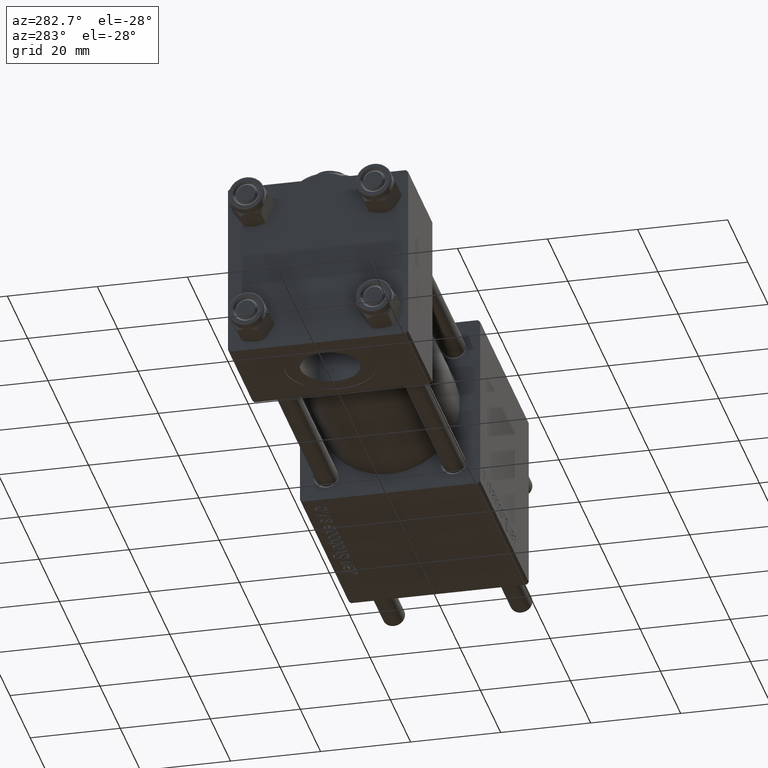
[diagram: clean part render]
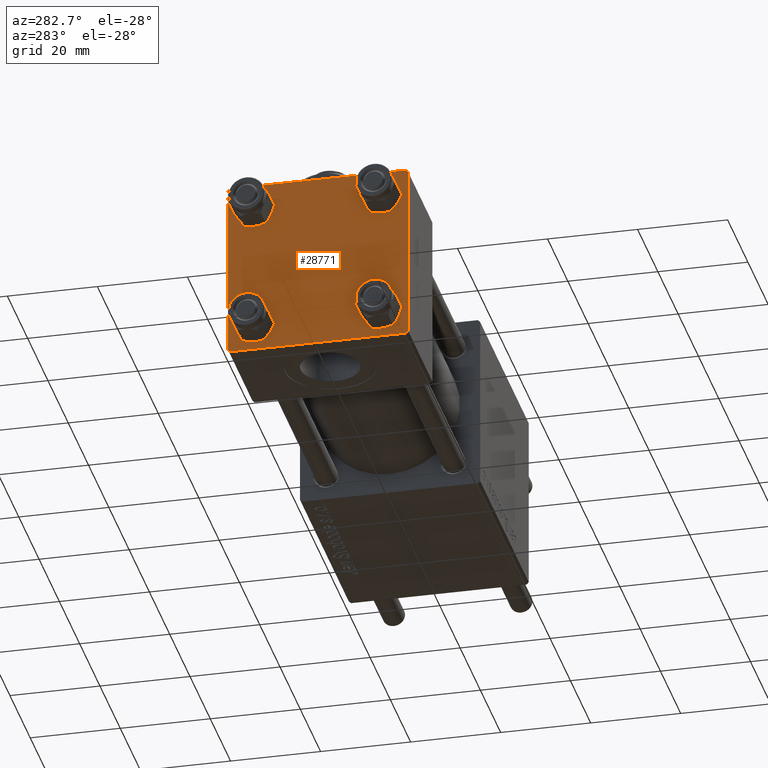
[diagram: same view with one face highlighted and labeled with its STEP entity id]
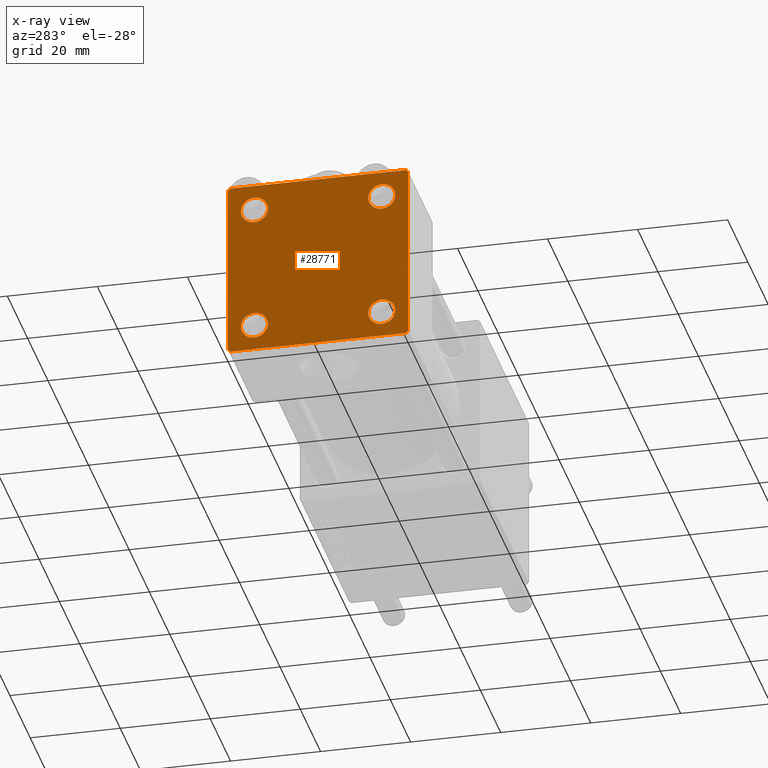
[diagram: x-ray of the same camera — body ghosted, the highlighted face saturated]
A machine part, auxiliary view. The second image highlights one B-rep face of the part: STEP entity #28771.
The next image is the same camera in x-ray: the body ghosted, the highlighted face saturated — about 0% of this face is hidden behind the body in this view.
In plain terms, the highlighted planar face has unit normal (-1, 0, 0).
Its self-contained STEP definition (entity closure, byte-faithful):
#1405 = EDGE_CURVE ( 'NONE', #23256, #45078, #50200, .T. ) ;
#2167 = DIRECTION ( 'NONE',  ( 1.000000000000000000, 0.000000000000000000, 0.000000000000000000 ) ) ;
#2416 = DIRECTION ( 'NONE',  ( 0.000000000000000000, 0.000000000000000000, 1.000000000000000000 ) ) ;
#2575 = CARTESIAN_POINT ( 'NONE',  ( 0.000000000000000000, -14.14999999999999503, 11.15000000000002345 ) ) ;
#2623 = CARTESIAN_POINT ( 'NONE',  ( 0.000000000000000000, -19.50000000000000711, -20.00000000000000000 ) ) ;
#3075 = VERTEX_POINT ( 'NONE', #20950 ) ;
#4042 = DIRECTION ( 'NONE',  ( -1.000000000000000000, 0.000000000000000000, -0.000000000000000000 ) ) ;
#4262 = VECTOR ( 'NONE', #39077, 1000.000000000000000 ) ;
#4516 = VERTEX_POINT ( 'NONE', #35863 ) ;
#5575 = VECTOR ( 'NONE', #33469, 1000.000000000000000 ) ;
#5648 = CARTESIAN_POINT ( 'NONE',  ( -0.000000000000000000, 19.75000000000013500, 19.74999999999986144 ) ) ;
#6156 = CARTESIAN_POINT ( 'NONE',  ( 0.000000000000000000, 19.50000000000000711, -20.00000000000000711 ) ) ;
#6271 = CARTESIAN_POINT ( 'NONE',  ( 0.000000000000000000, -20.00000000000000355, 19.49999999999998224 ) ) ;
#6959 = VERTEX_POINT ( 'NONE', #6271 ) ;
#7600 = DIRECTION ( 'NONE',  ( -0.000000000000000000, 0.000000000000000000, 1.000000000000000000 ) ) ;
#7746 = EDGE_CURVE ( 'NONE', #48064, #25355, #51813, .T. ) ;
#7912 = DIRECTION ( 'NONE',  ( 0.000000000000000000, 0.000000000000000000, -1.000000000000000000 ) ) ;
#7956 = ORIENTED_EDGE ( 'NONE', *, *, #7746, .T. ) ;
#8810 = LINE ( 'NONE', #21263, #4262 ) ;
#10248 = EDGE_LOOP ( 'NONE', ( #25375, #12692 ) ) ;
#11605 = CARTESIAN_POINT ( 'NONE',  ( 0.000000000000000000, 20.00000000000000000, 19.49999999999999289 ) ) ;
#12361 = LINE ( 'NONE', #48527, #34222 ) ;
#12692 = ORIENTED_EDGE ( 'NONE', *, *, #21902, .T. ) ;
#13090 = DIRECTION ( 'NONE',  ( 0.000000000000000000, 0.000000000000000000, 1.000000000000000000 ) ) ;
#13506 = FACE_BOUND ( 'NONE', #55146, .T. ) ;
#14078 = CARTESIAN_POINT ( 'NONE',  ( 0.000000000000000000, -14.14999999999999503, 14.15000000000000391 ) ) ;
#14830 = ORIENTED_EDGE ( 'NONE', *, *, #50039, .T. ) ;
#15762 = ORIENTED_EDGE ( 'NONE', *, *, #16187, .F. ) ;
#15766 = AXIS2_PLACEMENT_3D ( 'NONE', #58558, #4042, #7600 ) ;
#16054 = AXIS2_PLACEMENT_3D ( 'NONE', #32849, #38181, #42044 ) ;
#16187 = EDGE_CURVE ( 'NONE', #6959, #25355, #26451, .T. ) ;
#16681 = CARTESIAN_POINT ( 'NONE',  ( -0.000000000000000000, 19.74999999999986855, -19.75000000000014211 ) ) ;
#16833 = CARTESIAN_POINT ( 'NONE',  ( 0.000000000000000000, 14.14999999999999858, 14.15000000000000036 ) ) ;
#16976 = DIRECTION ( 'NONE',  ( -0.000000000000000000, 0.7071067811865500152, 0.7071067811865451302 ) ) ;
#17137 = DIRECTION ( 'NONE',  ( 0.000000000000000000, 0.000000000000000000, 1.000000000000000000 ) ) ;
#17142 = ORIENTED_EDGE ( 'NONE', *, *, #32847, .T. ) ;
#17842 = VERTEX_POINT ( 'NONE', #2575 ) ;
#19079 = CARTESIAN_POINT ( 'NONE',  ( 0.000000000000000000, -14.14999999999999503, -17.15000000000000924 ) ) ;
#19539 = CIRCLE ( 'NONE', #54532, 2.999999999999983569 ) ;
#20072 = ORIENTED_EDGE ( 'NONE', *, *, #32509, .T. ) ;
#20690 = LINE ( 'NONE', #38797, #5575 ) ;
#20820 = CARTESIAN_POINT ( 'NONE',  ( 0.000000000000000000, 14.14999999999999858, -17.14999999999998437 ) ) ;
#20950 = CARTESIAN_POINT ( 'NONE',  ( 0.000000000000000000, 19.50000000000000000, 20.00000000000000000 ) ) ;
#21263 = CARTESIAN_POINT ( 'NONE',  ( 0.000000000000000000, 20.00000000000000000, 20.00000000000000000 ) ) ;
#21431 = AXIS2_PLACEMENT_3D ( 'NONE', #25533, #2167, #43063 ) ;
#21724 = VERTEX_POINT ( 'NONE', #19079 ) ;
#21814 = FACE_OUTER_BOUND ( 'NONE', #36776, .T. ) ;
#21902 = EDGE_CURVE ( 'NONE', #47553, #4516, #48657, .T. ) ;
#22986 = CARTESIAN_POINT ( 'NONE',  ( 0.000000000000000000, 20.00000000000000000, -19.50000000000002132 ) ) ;
#23047 = VERTEX_POINT ( 'NONE', #46587 ) ;
#23088 = VECTOR ( 'NONE', #31494, 1000.000000000000000 ) ;
#23256 = VERTEX_POINT ( 'NONE', #24521 ) ;
#23646 = CARTESIAN_POINT ( 'NONE',  ( 0.000000000000000000, -14.14999999999999503, -14.15000000000000391 ) ) ;
#24260 = AXIS2_PLACEMENT_3D ( 'NONE', #35618, #53700, #13090 ) ;
#24521 = CARTESIAN_POINT ( 'NONE',  ( 0.000000000000000000, 14.14999999999999858, 17.14999999999998437 ) ) ;
#25004 = EDGE_CURVE ( 'NONE', #3075, #23047, #8810, .T. ) ;
#25209 = CARTESIAN_POINT ( 'NONE',  ( 0.000000000000000000, 14.14999999999999858, 14.15000000000000036 ) ) ;
#25355 = VERTEX_POINT ( 'NONE', #27405 ) ;
#25375 = ORIENTED_EDGE ( 'NONE', *, *, #51979, .T. ) ;
#25533 = CARTESIAN_POINT ( 'NONE',  ( 0.000000000000000000, -14.14999999999999503, -14.15000000000000391 ) ) ;
#26005 = AXIS2_PLACEMENT_3D ( 'NONE', #25209, #29678, #2416 ) ;
#26451 = LINE ( 'NONE', #54595, #23088 ) ;
#26461 = ORIENTED_EDGE ( 'NONE', *, *, #37007, .T. ) ;
#27347 = EDGE_CURVE ( 'NONE', #3075, #37371, #33212, .T. ) ;
#27405 = CARTESIAN_POINT ( 'NONE',  ( 0.000000000000000000, -20.00000000000000000, -19.49999999999999645 ) ) ;
#27662 = VERTEX_POINT ( 'NONE', #22986 ) ;
#28065 = ORIENTED_EDGE ( 'NONE', *, *, #28531, .T. ) ;
#28361 = EDGE_CURVE ( 'NONE', #28736, #21724, #45086, .T. ) ;
#28531 = EDGE_CURVE ( 'NONE', #17842, #51302, #29025, .T. ) ;
#28736 = VERTEX_POINT ( 'NONE', #48809 ) ;
#28771 = ADVANCED_FACE ( 'NONE', ( #13506, #43770, #35750, #31300, #21814 ), #44059, .T. ) ;
#29025 = CIRCLE ( 'NONE', #24260, 2.999999999999983569 ) ;
#29057 = DIRECTION ( 'NONE',  ( 0.000000000000000000, 0.7071067811865425767, -0.7071067811865525687 ) ) ;
#29279 = CARTESIAN_POINT ( 'NONE',  ( 0.000000000000000000, -19.75000000000020961, -19.74999999999979394 ) ) ;
#29403 = VERTEX_POINT ( 'NONE', #6156 ) ;
#29678 = DIRECTION ( 'NONE',  ( 1.000000000000000000, 0.000000000000000000, 0.000000000000000000 ) ) ;
#30184 = DIRECTION ( 'NONE',  ( 1.000000000000000000, 0.000000000000000000, 0.000000000000000000 ) ) ;
#31300 = FACE_BOUND ( 'NONE', #50170, .T. ) ;
#31494 = DIRECTION ( 'NONE',  ( 0.000000000000000000, 8.673617379884036705E-17, -1.000000000000000000 ) ) ;
#32246 = ORIENTED_EDGE ( 'NONE', *, *, #48881, .T. ) ;
#32509 = EDGE_CURVE ( 'NONE', #27662, #29403, #39828, .T. ) ;
#32756 = VECTOR ( 'NONE', #29057, 999.9999999999998863 ) ;
#32847 = EDGE_CURVE ( 'NONE', #45078, #23256, #42123, .T. ) ;
#32849 = CARTESIAN_POINT ( 'NONE',  ( 0.000000000000000000, 14.14999999999999858, -14.15000000000000036 ) ) ;
#33212 = LINE ( 'NONE', #5648, #32756 ) ;
#33469 = DIRECTION ( 'NONE',  ( 0.000000000000000000, -1.000000000000000000, 1.734723475976807094E-16 ) ) ;
#33746 = ORIENTED_EDGE ( 'NONE', *, *, #27347, .T. ) ;
#34222 = VECTOR ( 'NONE', #7912, 1000.000000000000000 ) ;
#34631 = ORIENTED_EDGE ( 'NONE', *, *, #28361, .T. ) ;
#35362 = DIRECTION ( 'NONE',  ( -0.000000000000000000, -0.7071067811865524577, -0.7071067811865426878 ) ) ;
#35618 = CARTESIAN_POINT ( 'NONE',  ( 0.000000000000000000, -14.14999999999999503, 14.15000000000000391 ) ) ;
#35661 = ORIENTED_EDGE ( 'NONE', *, *, #57582, .T. ) ;
#35673 = ORIENTED_EDGE ( 'NONE', *, *, #56608, .T. ) ;
#35750 = FACE_BOUND ( 'NONE', #10248, .T. ) ;
#35863 = CARTESIAN_POINT ( 'NONE',  ( 0.000000000000000000, 14.14999999999999858, -11.15000000000001812 ) ) ;
#36776 = EDGE_LOOP ( 'NONE', ( #35661, #20072, #32246, #7956, #15762, #14830, #42041, #33746 ) ) ;
#37007 = EDGE_CURVE ( 'NONE', #51302, #17842, #19539, .T. ) ;
#37371 = VERTEX_POINT ( 'NONE', #11605 ) ;
#37834 = VECTOR ( 'NONE', #16976, 1000.000000000000114 ) ;
#38181 = DIRECTION ( 'NONE',  ( 1.000000000000000000, 0.000000000000000000, 0.000000000000000000 ) ) ;
#38797 = CARTESIAN_POINT ( 'NONE',  ( 0.000000000000000000, 20.00000000000000000, -20.00000000000000711 ) ) ;
#39077 = DIRECTION ( 'NONE',  ( 0.000000000000000000, -1.000000000000000000, -2.602085213965210149E-16 ) ) ;
#39213 = CARTESIAN_POINT ( 'NONE',  ( 0.000000000000000000, 14.14999999999999858, -14.15000000000000036 ) ) ;
#39828 = LINE ( 'NONE', #16681, #43085 ) ;
#41383 = CARTESIAN_POINT ( 'NONE',  ( 0.000000000000000000, 14.14999999999999858, 11.15000000000001990 ) ) ;
#42041 = ORIENTED_EDGE ( 'NONE', *, *, #25004, .F. ) ;
#42044 = DIRECTION ( 'NONE',  ( 0.000000000000000000, 0.000000000000000000, 1.000000000000000000 ) ) ;
#42046 = DIRECTION ( 'NONE',  ( 0.000000000000000000, 0.000000000000000000, 1.000000000000000000 ) ) ;
#42123 = CIRCLE ( 'NONE', #26005, 2.999999999999983569 ) ;
#43063 = DIRECTION ( 'NONE',  ( 0.000000000000000000, 0.000000000000000000, 1.000000000000000000 ) ) ;
#43085 = VECTOR ( 'NONE', #35362, 1000.000000000000000 ) ;
#43389 = DIRECTION ( 'NONE',  ( 0.000000000000000000, 0.000000000000000000, 1.000000000000000000 ) ) ;
#43770 = FACE_BOUND ( 'NONE', #55080, .T. ) ;
#44059 = PLANE ( 'NONE',  #15766 ) ;
#44455 = CIRCLE ( 'NONE', #16054, 2.999999999999983569 ) ;
#45078 = VERTEX_POINT ( 'NONE', #41383 ) ;
#45086 = CIRCLE ( 'NONE', #21431, 3.000000000000004441 ) ;
#45888 = DIRECTION ( 'NONE',  ( 1.000000000000000000, 0.000000000000000000, 0.000000000000000000 ) ) ;
#46306 = AXIS2_PLACEMENT_3D ( 'NONE', #16833, #30184, #17137 ) ;
#46587 = CARTESIAN_POINT ( 'NONE',  ( 0.000000000000000000, -19.49999999999999289, 19.99999999999998934 ) ) ;
#47356 = DIRECTION ( 'NONE',  ( 0.000000000000000000, -0.7071067811865401342, 0.7071067811865549002 ) ) ;
#47553 = VERTEX_POINT ( 'NONE', #20820 ) ;
#48064 = VERTEX_POINT ( 'NONE', #2623 ) ;
#48527 = CARTESIAN_POINT ( 'NONE',  ( 0.000000000000000000, 20.00000000000000000, 20.00000000000000000 ) ) ;
#48657 = CIRCLE ( 'NONE', #57188, 2.999999999999983569 ) ;
#48682 = DIRECTION ( 'NONE',  ( 0.000000000000000000, 0.000000000000000000, 1.000000000000000000 ) ) ;
#48809 = CARTESIAN_POINT ( 'NONE',  ( 0.000000000000000000, -14.14999999999999503, -11.15000000000000036 ) ) ;
#48881 = EDGE_CURVE ( 'NONE', #29403, #48064, #20690, .T. ) ;
#48981 = DIRECTION ( 'NONE',  ( 1.000000000000000000, 0.000000000000000000, 0.000000000000000000 ) ) ;
#49323 = CIRCLE ( 'NONE', #56891, 3.000000000000004441 ) ;
#50039 = EDGE_CURVE ( 'NONE', #6959, #23047, #57600, .T. ) ;
#50170 = EDGE_LOOP ( 'NONE', ( #56426, #17142 ) ) ;
#50200 = CIRCLE ( 'NONE', #46306, 2.999999999999983569 ) ;
#50248 = DIRECTION ( 'NONE',  ( 1.000000000000000000, 0.000000000000000000, 0.000000000000000000 ) ) ;
#51183 = VECTOR ( 'NONE', #47356, 1000.000000000000000 ) ;
#51302 = VERTEX_POINT ( 'NONE', #56301 ) ;
#51813 = LINE ( 'NONE', #29279, #51183 ) ;
#51979 = EDGE_CURVE ( 'NONE', #4516, #47553, #44455, .T. ) ;
#53700 = DIRECTION ( 'NONE',  ( 1.000000000000000000, 0.000000000000000000, 0.000000000000000000 ) ) ;
#54532 = AXIS2_PLACEMENT_3D ( 'NONE', #14078, #50248, #43389 ) ;
#54595 = CARTESIAN_POINT ( 'NONE',  ( 0.000000000000000000, -20.00000000000000355, 19.99999999999998934 ) ) ;
#55080 = EDGE_LOOP ( 'NONE', ( #34631, #35673 ) ) ;
#55146 = EDGE_LOOP ( 'NONE', ( #26461, #28065 ) ) ;
#56301 = CARTESIAN_POINT ( 'NONE',  ( 0.000000000000000000, -14.14999999999999503, 17.14999999999998792 ) ) ;
#56426 = ORIENTED_EDGE ( 'NONE', *, *, #1405, .T. ) ;
#56608 = EDGE_CURVE ( 'NONE', #21724, #28736, #49323, .T. ) ;
#56891 = AXIS2_PLACEMENT_3D ( 'NONE', #23646, #45888, #42046 ) ;
#57009 = CARTESIAN_POINT ( 'NONE',  ( -0.000000000000000000, -19.74999999999992539, 19.75000000000006395 ) ) ;
#57188 = AXIS2_PLACEMENT_3D ( 'NONE', #39213, #48981, #48682 ) ;
#57582 = EDGE_CURVE ( 'NONE', #37371, #27662, #12361, .T. ) ;
#57600 = LINE ( 'NONE', #57009, #37834 ) ;
#58558 = CARTESIAN_POINT ( 'NONE',  ( 0.000000000000000000, 0.000000000000000000, 0.000000000000000000 ) ) ;